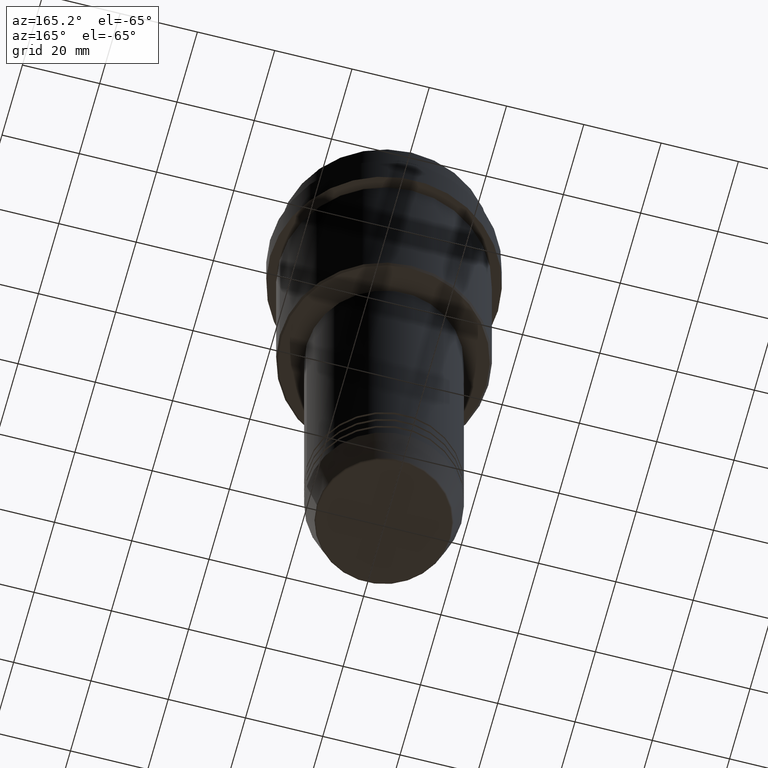
[diagram: clean part render]
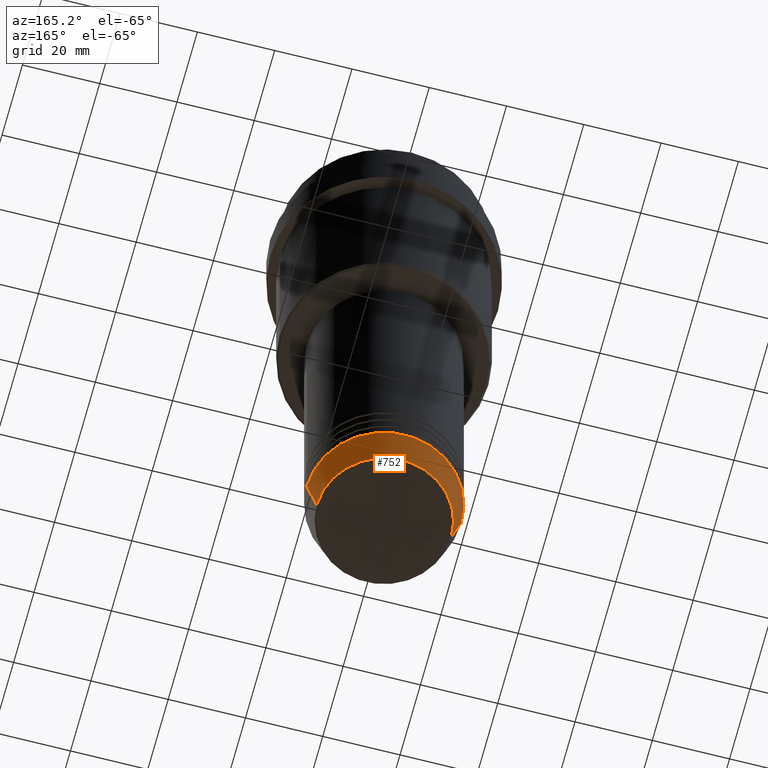
[diagram: same view with one face highlighted and labeled with its STEP entity id]
A machine part, auxiliary view. The second image highlights one B-rep face of the part: STEP entity #752.
In plain terms, the highlighted conical surface has half-angle 15 deg.
Its self-contained STEP definition (entity closure, byte-faithful):
#14 = ORIENTED_EDGE ( 'NONE', *, *, #1269, .T. ) ;
#38 = CARTESIAN_POINT ( 'NONE',  ( 20.00000000000000000, 0.000000000000000000, -153.0000000000000000 ) ) ;
#51 = VERTEX_POINT ( 'NONE', #990 ) ;
#91 = DIRECTION ( 'NONE',  ( 0.2588190451025218497, 0.000000000000000000, 0.9659258262890679791 ) ) ;
#111 = EDGE_CURVE ( 'NONE', #1094, #51, #733, .T. ) ;
#156 = VERTEX_POINT ( 'NONE', #1353 ) ;
#214 = CARTESIAN_POINT ( 'NONE',  ( -20.00000000000000000, 2.449293598294706513E-15, -153.0000000000000000 ) ) ;
#222 = AXIS2_PLACEMENT_3D ( 'NONE', #1133, #355, #379 ) ;
#267 = VECTOR ( 'NONE', #91, 1000.000000000000000 ) ;
#310 = VECTOR ( 'NONE', #753, 1000.000000000000000 ) ;
#332 = AXIS2_PLACEMENT_3D ( 'NONE', #936, #1350, #377 ) ;
#355 = DIRECTION ( 'NONE',  ( -0.000000000000000000, -0.000000000000000000, 1.000000000000000000 ) ) ;
#377 = DIRECTION ( 'NONE',  ( 1.000000000000000000, 0.000000000000000000, 0.000000000000000000 ) ) ;
#378 = CONICAL_SURFACE ( 'NONE', #332, 20.00000000000000000, 0.2617993877991505736 ) ;
#379 = DIRECTION ( 'NONE',  ( 1.000000000000000000, 0.000000000000000000, 0.000000000000000000 ) ) ;
#385 = FACE_OUTER_BOUND ( 'NONE', #654, .T. ) ;
#416 = CARTESIAN_POINT ( 'NONE',  ( 0.000000000000000000, 0.000000000000000000, -162.6294095225512137 ) ) ;
#423 = EDGE_CURVE ( 'NONE', #609, #51, #1292, .T. ) ;
#435 = EDGE_CURVE ( 'NONE', #156, #1094, #1082, .T. ) ;
#530 = AXIS2_PLACEMENT_3D ( 'NONE', #416, #851, #740 ) ;
#609 = VERTEX_POINT ( 'NONE', #804 ) ;
#654 = EDGE_LOOP ( 'NONE', ( #14, #1186, #957, #739 ) ) ;
#733 = CIRCLE ( 'NONE', #222, 20.00000000000000000 ) ;
#739 = ORIENTED_EDGE ( 'NONE', *, *, #435, .F. ) ;
#740 = DIRECTION ( 'NONE',  ( 1.000000000000000000, 0.000000000000000000, 0.000000000000000000 ) ) ;
#752 = ADVANCED_FACE ( 'NONE', ( #385 ), #378, .T. ) ;
#753 = DIRECTION ( 'NONE',  ( -0.2588190451025218497, 3.169619151431778500E-17, 0.9659258262890679791 ) ) ;
#804 = CARTESIAN_POINT ( 'NONE',  ( -17.41980749484382329, 2.291302373663531521E-15, -162.6294095225512137 ) ) ;
#851 = DIRECTION ( 'NONE',  ( -0.000000000000000000, -0.000000000000000000, 1.000000000000000000 ) ) ;
#936 = CARTESIAN_POINT ( 'NONE',  ( 0.000000000000000000, 0.000000000000000000, -153.0000000000000000 ) ) ;
#957 = ORIENTED_EDGE ( 'NONE', *, *, #111, .F. ) ;
#990 = CARTESIAN_POINT ( 'NONE',  ( -20.00000000000000000, 2.449293598294706513E-15, -153.0000000000000000 ) ) ;
#1082 = LINE ( 'NONE', #1317, #267 ) ;
#1094 = VERTEX_POINT ( 'NONE', #38 ) ;
#1128 = CIRCLE ( 'NONE', #530, 17.41980749484382329 ) ;
#1133 = CARTESIAN_POINT ( 'NONE',  ( 0.000000000000000000, 0.000000000000000000, -153.0000000000000000 ) ) ;
#1186 = ORIENTED_EDGE ( 'NONE', *, *, #423, .T. ) ;
#1269 = EDGE_CURVE ( 'NONE', #156, #609, #1128, .T. ) ;
#1292 = LINE ( 'NONE', #214, #310 ) ;
#1317 = CARTESIAN_POINT ( 'NONE',  ( 20.00000000000000000, 0.000000000000000000, -153.0000000000000000 ) ) ;
#1350 = DIRECTION ( 'NONE',  ( -0.000000000000000000, -0.000000000000000000, 1.000000000000000000 ) ) ;
#1353 = CARTESIAN_POINT ( 'NONE',  ( 17.41980749484382329, 0.000000000000000000, -162.6294095225512137 ) ) ;